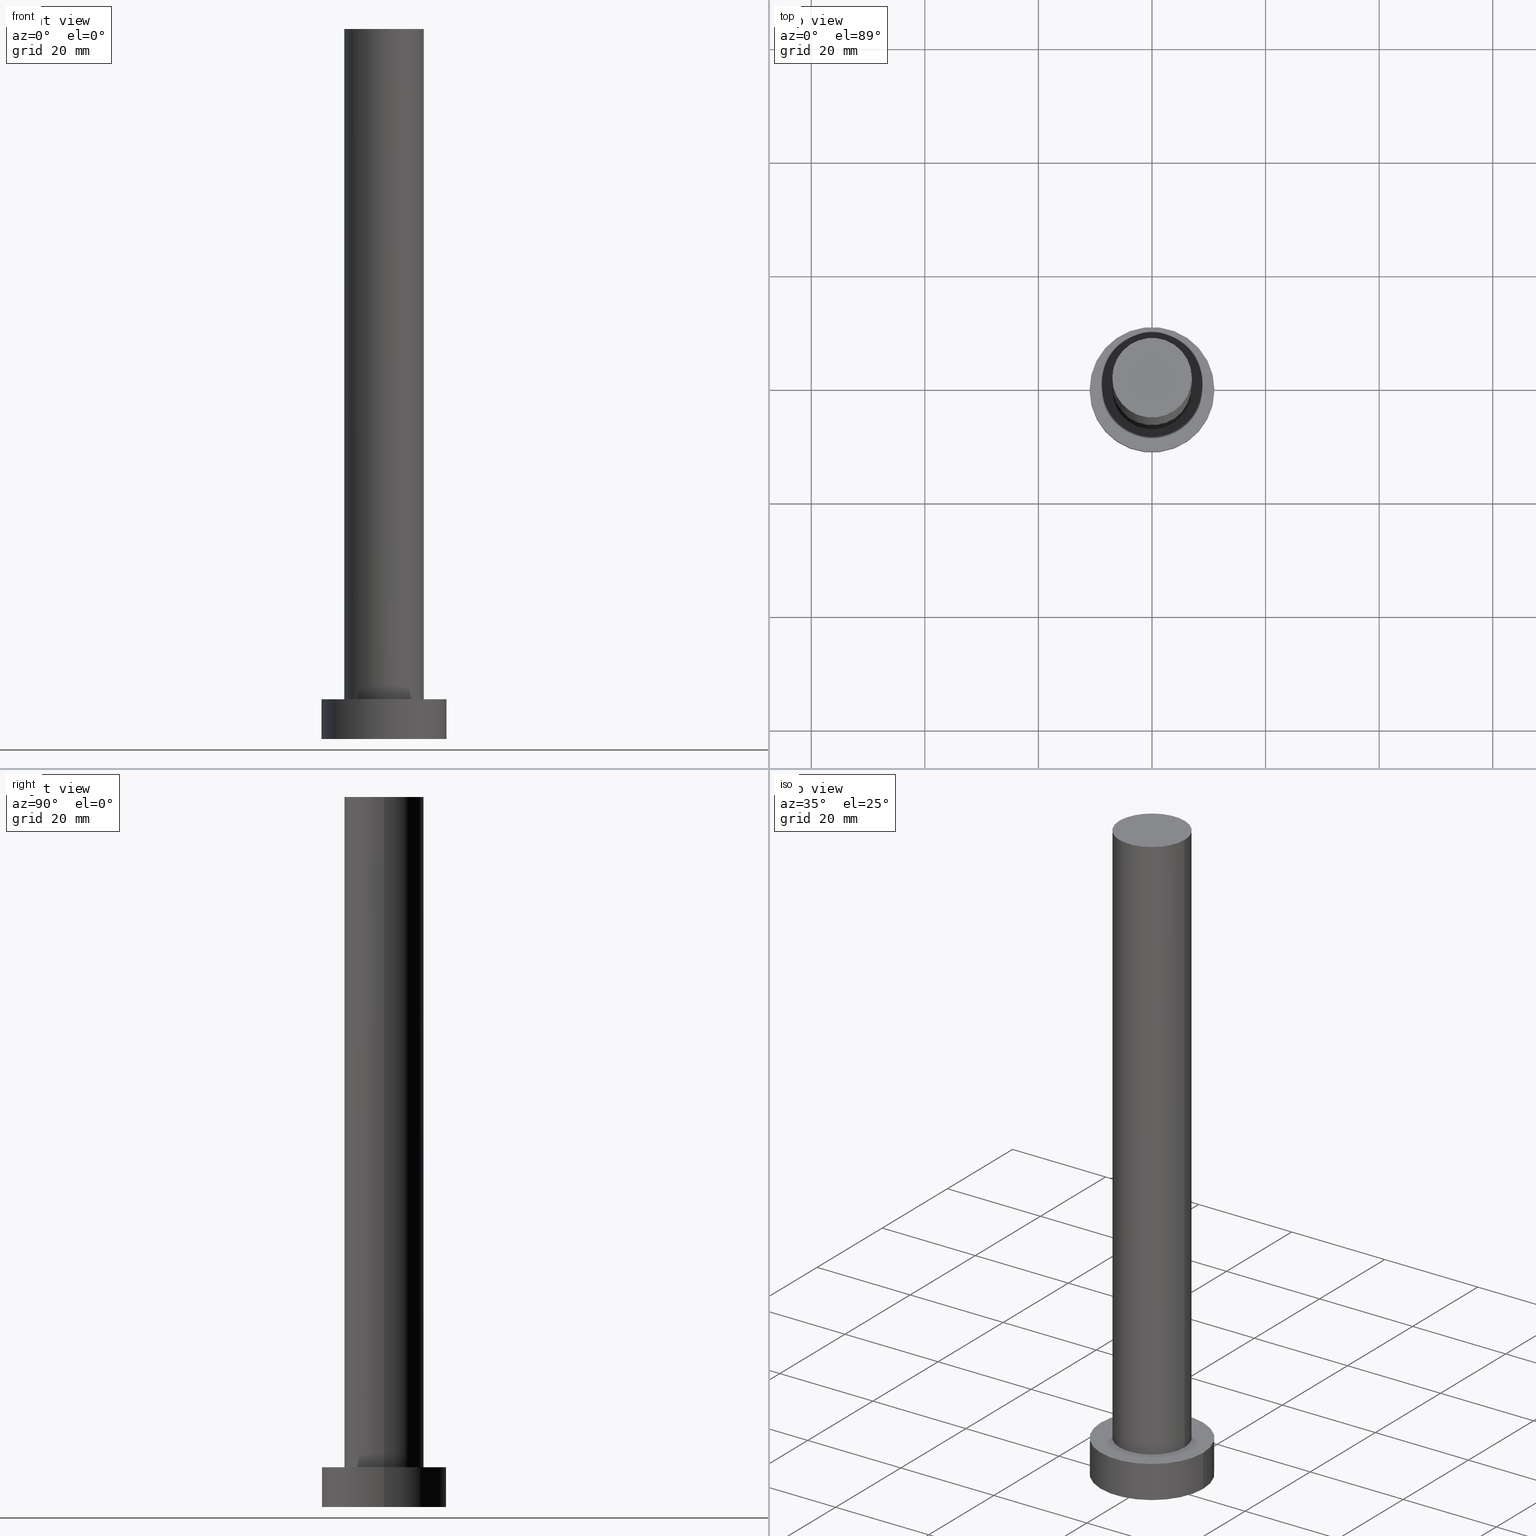
[diagram: canonical four-view strip — front | top / right | iso, engineering-drawing reading convention]
A machine part, canonical four-view strip (front | top / right | iso — engineering-drawing reading convention). The complete STEP part file that produces these views, byte-faithful:
ISO-10303-21;
HEADER;
FILE_DESCRIPTION (( 'STEP AP203' ),
    '1' );
FILE_NAME ('eaa5.STEP',
    '2023-02-12T10:48:17',
    ( '' ),
    ( '' ),
    'SwSTEP 2.0',
    'SolidWorks 2019',
    '' );
FILE_SCHEMA (( 'CONFIG_CONTROL_DESIGN' ));
ENDSEC;

DATA;
#1 = APPLICATION_CONTEXT ( 'configuration controlled 3d designs of mechanical parts and assemblies' ) ;
#2 = AXIS2_PLACEMENT_3D ( 'NONE', #162, #216, #44 ) ;
#3 = DIRECTION ( 'NONE',  ( 0.000000000000000000, 0.000000000000000000, 1.000000000000000000 ) ) ;
#4 = CARTESIAN_POINT ( 'NONE',  ( 0.000000000000000000, 0.000000000000000000, 0.000000000000000000 ) ) ;
#5 = ORIENTED_EDGE ( 'NONE', *, *, #55, .F. ) ;
#6 = ORIENTED_EDGE ( 'NONE', *, *, #147, .F. ) ;
#7 = APPROVAL_ROLE ( '' ) ;
#8 = PRODUCT_DEFINITION ( 'NEZN�M�', '', #110, #139 ) ;
#9 = COORDINATED_UNIVERSAL_TIME_OFFSET ( 1, 0, .AHEAD. ) ;
#10 = APPROVAL_DATE_TIME ( #49, #155 ) ;
#11 = DIRECTION ( 'NONE',  ( 1.000000000000000000, 0.000000000000000000, 0.000000000000000000 ) ) ;
#12 = AXIS2_PLACEMENT_3D ( 'NONE', #22, #45, #118 ) ;
#13 = DIRECTION ( 'NONE',  ( 0.000000000000000000, 0.000000000000000000, 1.000000000000000000 ) ) ;
#14 = CC_DESIGN_PERSON_AND_ORGANIZATION_ASSIGNMENT ( #206, #184, ( #8 ) ) ;
#15 = CALENDAR_DATE ( 2023, 12, 2 ) ;
#16 = EDGE_LOOP ( 'NONE', ( #128, #6, #39, #183 ) ) ;
#17 = CARTESIAN_POINT ( 'NONE',  ( 0.000000000000000000, 0.000000000000000000, 7.000000000000000000 ) ) ;
#18 = DATE_AND_TIME ( #38, #46 ) ;
#19 = DIRECTION ( 'NONE',  ( -0.000000000000000000, -0.000000000000000000, -1.000000000000000000 ) ) ;
#20 = CC_DESIGN_PERSON_AND_ORGANIZATION_ASSIGNMENT ( #202, #71, ( #26 ) ) ;
#21 = LINE ( 'NONE', #160, #250 ) ;
#22 = CARTESIAN_POINT ( 'NONE',  ( 0.000000000000000000, 0.000000000000000000, 7.000000000000000000 ) ) ;
#23 = CARTESIAN_POINT ( 'NONE',  ( 0.000000000000000000, 0.000000000000000000, 125.0000000000000000 ) ) ;
#24 = CC_DESIGN_SECURITY_CLASSIFICATION ( #100, ( #110 ) ) ;
#25 = DIRECTION ( 'NONE',  ( -1.000000000000000000, 0.000000000000000000, 0.000000000000000000 ) ) ;
#26 = PRODUCT ( 'eaa5', 'eaa5', '', ( #90 ) ) ;
#27 = AXIS2_PLACEMENT_3D ( 'NONE', #40, #73, #112 ) ;
#28 = EDGE_CURVE ( 'NONE', #157, #149, #156, .T. ) ;
#29 = EDGE_LOOP ( 'NONE', ( #229, #126, #104, #192 ) ) ;
#30 = APPROVAL_PERSON_ORGANIZATION ( #227, #124, #142 ) ;
#31 = COORDINATED_UNIVERSAL_TIME_OFFSET ( 1, 0, .AHEAD. ) ;
#32 = AXIS2_PLACEMENT_3D ( 'NONE', #23, #252, #178 ) ;
#33 = EDGE_CURVE ( 'NONE', #149, #205, #108, .T. ) ;
#34 = APPROVAL_STATUS ( 'not_yet_approved' ) ;
#35 = DIRECTION ( 'NONE',  ( 0.000000000000000000, 0.000000000000000000, 1.000000000000000000 ) ) ;
#36 = CC_DESIGN_APPROVAL ( #155, ( #8 ) ) ;
#37 = FACE_OUTER_BOUND ( 'NONE', #85, .T. ) ;
#38 = CALENDAR_DATE ( 2023, 12, 2 ) ;
#39 = ORIENTED_EDGE ( 'NONE', *, *, #141, .T. ) ;
#40 = CARTESIAN_POINT ( 'NONE',  ( 0.000000000000000000, 0.000000000000000000, 125.0000000000000000 ) ) ;
#41 = ORIENTED_EDGE ( 'NONE', *, *, #147, .T. ) ;
#42 = DIRECTION ( 'NONE',  ( -0.000000000000000000, -0.000000000000000000, -1.000000000000000000 ) ) ;
#43 = DIRECTION ( 'NONE',  ( 0.000000000000000000, 0.000000000000000000, 1.000000000000000000 ) ) ;
#44 = DIRECTION ( 'NONE',  ( -1.000000000000000000, 0.000000000000000000, 0.000000000000000000 ) ) ;
#45 = DIRECTION ( 'NONE',  ( 0.000000000000000000, 0.000000000000000000, 1.000000000000000000 ) ) ;
#46 = LOCAL_TIME ( 11, 48, 17.00000000000000000, #111 ) ;
#47 = ADVANCED_FACE ( 'NONE', ( #37 ), #228, .T. ) ;
#48 = ORIENTED_EDGE ( 'NONE', *, *, #199, .T. ) ;
#49 = DATE_AND_TIME ( #223, #54 ) ;
#50 = CIRCLE ( 'NONE', #171, 11.00000000000000000 ) ;
#51 = PERSON_AND_ORGANIZATION ( #154, #158 ) ;
#52 = CLOSED_SHELL ( 'NONE', ( #190, #195, #102, #170, #64, #152, #47 ) ) ;
#53 = DIRECTION ( 'NONE',  ( 1.000000000000000000, 0.000000000000000000, 0.000000000000000000 ) ) ;
#54 = LOCAL_TIME ( 11, 48, 17.00000000000000000, #31 ) ;
#55 = EDGE_CURVE ( 'NONE', #173, #205, #233, .T. ) ;
#56 = CARTESIAN_POINT ( 'NONE',  ( 0.000000000000000000, 0.000000000000000000, 7.000000000000000000 ) ) ;
#57 = CARTESIAN_POINT ( 'NONE',  ( 11.00000000000000000, 1.347111479062088405E-15, 0.000000000000000000 ) ) ;
#58 = CARTESIAN_POINT ( 'NONE',  ( 7.000000000000000000, 8.572527594031473190E-16, 7.000000000000000000 ) ) ;
#59 = CARTESIAN_POINT ( 'NONE',  ( -7.000000000000000000, 0.000000000000000000, 125.0000000000000000 ) ) ;
#60 = EDGE_CURVE ( 'NONE', #123, #133, #225, .T. ) ;
#61 = DATE_TIME_ROLE ( 'classification_date' ) ;
#62 = LINE ( 'NONE', #196, #180 ) ;
#63 = CYLINDRICAL_SURFACE ( 'NONE', #145, 7.000000000000000000 ) ;
#64 = ADVANCED_FACE ( 'NONE', ( #96 ), #175, .F. ) ;
#65 = AXIS2_PLACEMENT_3D ( 'NONE', #188, #13, #165 ) ;
#66 = ORIENTED_EDGE ( 'NONE', *, *, #28, .F. ) ;
#67 = PERSON_AND_ORGANIZATION ( #154, #158 ) ;
#68 = APPLICATION_CONTEXT ( 'configuration controlled 3d designs of mechanical parts and assemblies' ) ;
#69 = ORIENTED_EDGE ( 'NONE', *, *, #181, .F. ) ;
#70 = CALENDAR_DATE ( 2023, 12, 2 ) ;
#71 = PERSON_AND_ORGANIZATION_ROLE ( 'design_owner' ) ;
#72 = EDGE_CURVE ( 'NONE', #133, #153, #222, .T. ) ;
#73 = DIRECTION ( 'NONE',  ( 0.000000000000000000, 0.000000000000000000, 1.000000000000000000 ) ) ;
#74 = ORIENTED_EDGE ( 'NONE', *, *, #78, .T. ) ;
#75 = EDGE_LOOP ( 'NONE', ( #130, #88, #201, #212 ) ) ;
#76 = DATE_AND_TIME ( #15, #129 ) ;
#77 = UNCERTAINTY_MEASURE_WITH_UNIT (LENGTH_MEASURE( 1.000000000000000082E-05 ), #208, 'distance_accuracy_value', 'NONE');
#78 = EDGE_CURVE ( 'NONE', #157, #173, #21, .T. ) ;
#79 = LOCAL_TIME ( 11, 48, 17.00000000000000000, #9 ) ;
#80 = DIRECTION ( 'NONE',  ( 1.000000000000000000, 0.000000000000000000, 0.000000000000000000 ) ) ;
#81 = FACE_OUTER_BOUND ( 'NONE', #16, .T. ) ;
#82 = ORIENTED_EDGE ( 'NONE', *, *, #169, .T. ) ;
#83 = CC_DESIGN_DATE_AND_TIME_ASSIGNMENT ( #76, #61, ( #100 ) ) ;
#84 = AXIS2_PLACEMENT_3D ( 'NONE', #56, #132, #186 ) ;
#85 = EDGE_LOOP ( 'NONE', ( #151, #82 ) ) ;
#86 = APPROVAL_ROLE ( '' ) ;
#87 = CIRCLE ( 'NONE', #174, 11.00000000000000000 ) ;
#88 = ORIENTED_EDGE ( 'NONE', *, *, #60, .T. ) ;
#89 = DATE_AND_TIME ( #70, #79 ) ;
#90 = MECHANICAL_CONTEXT ( 'NONE', #68, 'mechanical' ) ;
#91 = AXIS2_PLACEMENT_3D ( 'NONE', #99, #163, #235 ) ;
#92 = ADVANCED_BREP_SHAPE_REPRESENTATION ( 'eaa5', ( #131, #189 ), #122 ) ;
#93 = APPROVAL_DATE_TIME ( #18, #124 ) ;
#94 =( NAMED_UNIT ( * ) PLANE_ANGLE_UNIT ( ) SI_UNIT ( $, .RADIAN. ) );
#95 = VERTEX_POINT ( 'NONE', #143 ) ;
#96 = FACE_OUTER_BOUND ( 'NONE', #243, .T. ) ;
#97 = ORIENTED_EDGE ( 'NONE', *, *, #55, .T. ) ;
#98 = CYLINDRICAL_SURFACE ( 'NONE', #2, 11.00000000000000000 ) ;
#99 = CARTESIAN_POINT ( 'NONE',  ( 0.000000000000000000, 0.000000000000000000, 7.000000000000000000 ) ) ;
#100 = SECURITY_CLASSIFICATION ( '', '', #135 ) ;
#101 = DIRECTION ( 'NONE',  ( 1.000000000000000000, 0.000000000000000000, 0.000000000000000000 ) ) ;
#102 = ADVANCED_FACE ( 'NONE', ( #81 ), #98, .T. ) ;
#103 = FACE_OUTER_BOUND ( 'NONE', #29, .T. ) ;
#104 = ORIENTED_EDGE ( 'NONE', *, *, #181, .T. ) ;
#105 = CC_DESIGN_PERSON_AND_ORGANIZATION_ASSIGNMENT ( #177, #251, ( #100 ) ) ;
#106 = APPLICATION_PROTOCOL_DEFINITION ( 'international standard', 'config_control_design', 1994, #1 ) ;
#107 = DATE_TIME_ROLE ( 'creation_date' ) ;
#108 = LINE ( 'NONE', #211, #134 ) ;
#109 = DIRECTION ( 'NONE',  ( -0.000000000000000000, -0.000000000000000000, -1.000000000000000000 ) ) ;
#110 = PRODUCT_DEFINITION_FORMATION_WITH_SPECIFIED_SOURCE ( 'LIBOVOLN�', '', #26, .NOT_KNOWN. ) ;
#111 = COORDINATED_UNIVERSAL_TIME_OFFSET ( 1, 0, .AHEAD. ) ;
#112 = DIRECTION ( 'NONE',  ( 1.000000000000000000, 0.000000000000000000, -0.000000000000000000 ) ) ;
#113 = VECTOR ( 'NONE', #19, 1000.000000000000000 ) ;
#114 = EDGE_LOOP ( 'NONE', ( #5, #69 ) ) ;
#115 = EDGE_LOOP ( 'NONE', ( #41, #48 ) ) ;
#116 = CARTESIAN_POINT ( 'NONE',  ( 7.000000000000000000, 8.572527594031473190E-16, 125.0000000000000000 ) ) ;
#117 = DIRECTION ( 'NONE',  ( 0.000000000000000000, 0.000000000000000000, 1.000000000000000000 ) ) ;
#118 = DIRECTION ( 'NONE',  ( 1.000000000000000000, 0.000000000000000000, -0.000000000000000000 ) ) ;
#119 = PRODUCT_RELATED_PRODUCT_CATEGORY ( 'detail', '', ( #26 ) ) ;
#120 = CARTESIAN_POINT ( 'NONE',  ( 0.000000000000000000, 0.000000000000000000, 125.0000000000000000 ) ) ;
#121 = AXIS2_PLACEMENT_3D ( 'NONE', #136, #43, #101 ) ;
#122 =( GEOMETRIC_REPRESENTATION_CONTEXT ( 3 ) GLOBAL_UNCERTAINTY_ASSIGNED_CONTEXT ( ( #77 ) ) GLOBAL_UNIT_ASSIGNED_CONTEXT ( ( #208, #94, #220 ) ) REPRESENTATION_CONTEXT ( 'NONE', 'WORKASPACE' ) );
#123 = VERTEX_POINT ( 'NONE', #146 ) ;
#124 = APPROVAL ( #217, 'NEUR�EN�' ) ;
#125 = DIRECTION ( 'NONE',  ( 1.000000000000000000, 0.000000000000000000, 0.000000000000000000 ) ) ;
#126 = ORIENTED_EDGE ( 'NONE', *, *, #33, .T. ) ;
#127 = CALENDAR_DATE ( 2023, 12, 2 ) ;
#128 = ORIENTED_EDGE ( 'NONE', *, *, #60, .F. ) ;
#129 = LOCAL_TIME ( 11, 48, 17.00000000000000000, #161 ) ;
#130 = ORIENTED_EDGE ( 'NONE', *, *, #199, .F. ) ;
#131 = MANIFOLD_SOLID_BREP ( 'P�idat vysunut�m3', #52 ) ;
#132 = DIRECTION ( 'NONE',  ( 0.000000000000000000, 0.000000000000000000, 1.000000000000000000 ) ) ;
#133 = VERTEX_POINT ( 'NONE', #57 ) ;
#134 = VECTOR ( 'NONE', #109, 1000.000000000000000 ) ;
#135 = SECURITY_CLASSIFICATION_LEVEL ( 'unclassified' ) ;
#136 = CARTESIAN_POINT ( 'NONE',  ( 0.000000000000000000, 0.000000000000000000, 7.000000000000000000 ) ) ;
#137 = DIRECTION ( 'NONE',  ( 0.000000000000000000, 0.000000000000000000, 1.000000000000000000 ) ) ;
#138 = AXIS2_PLACEMENT_3D ( 'NONE', #17, #42, #210 ) ;
#139 = DESIGN_CONTEXT ( 'detailed design', #1, 'design' ) ;
#140 = CARTESIAN_POINT ( 'NONE',  ( 0.000000000000000000, 0.000000000000000000, 125.0000000000000000 ) ) ;
#141 = EDGE_CURVE ( 'NONE', #95, #153, #62, .T. ) ;
#142 = APPROVAL_ROLE ( '' ) ;
#143 = CARTESIAN_POINT ( 'NONE',  ( -11.00000000000000000, 0.000000000000000000, 7.000000000000000000 ) ) ;
#144 = CARTESIAN_POINT ( 'NONE',  ( -11.00000000000000000, 0.000000000000000000, 0.000000000000000000 ) ) ;
#145 = AXIS2_PLACEMENT_3D ( 'NONE', #120, #198, #25 ) ;
#146 = CARTESIAN_POINT ( 'NONE',  ( 11.00000000000000000, 1.347111479062088405E-15, 7.000000000000000000 ) ) ;
#147 = EDGE_CURVE ( 'NONE', #95, #123, #230, .T. ) ;
#148 = CIRCLE ( 'NONE', #166, 7.000000000000000000 ) ;
#149 = VERTEX_POINT ( 'NONE', #116 ) ;
#150 = CC_DESIGN_APPROVAL ( #232, ( #110 ) ) ;
#151 = ORIENTED_EDGE ( 'NONE', *, *, #28, .T. ) ;
#152 = ADVANCED_FACE ( 'NONE', ( #234 ), #219, .T. ) ;
#153 = VERTEX_POINT ( 'NONE', #144 ) ;
#154 = PERSON ( 'NEUR�EN�', 'NEUR�EN�', 'NEUR�EN�', ('NEUR�EN�'), ('NEUR�EN�'), ('NEUR�EN�') ) ;
#155 = APPROVAL ( #203, 'NEUR�EN�' ) ;
#156 = CIRCLE ( 'NONE', #241, 7.000000000000000000 ) ;
#157 = VERTEX_POINT ( 'NONE', #59 ) ;
#158 = ORGANIZATION ( 'NEUR�EN�', 'NEUR�EN�', '' ) ;
#159 = EDGE_LOOP ( 'NONE', ( #231, #66, #74, #97 ) ) ;
#160 = CARTESIAN_POINT ( 'NONE',  ( -7.000000000000000000, 0.000000000000000000, 125.0000000000000000 ) ) ;
#161 = COORDINATED_UNIVERSAL_TIME_OFFSET ( 1, 0, .AHEAD. ) ;
#162 = CARTESIAN_POINT ( 'NONE',  ( 0.000000000000000000, 0.000000000000000000, 7.000000000000000000 ) ) ;
#163 = DIRECTION ( 'NONE',  ( 0.000000000000000000, 0.000000000000000000, 1.000000000000000000 ) ) ;
#164 = AXIS2_PLACEMENT_3D ( 'NONE', #172, #248, #244 ) ;
#165 = DIRECTION ( 'NONE',  ( 1.000000000000000000, 0.000000000000000000, 0.000000000000000000 ) ) ;
#166 = AXIS2_PLACEMENT_3D ( 'NONE', #140, #117, #80 ) ;
#167 = DIRECTION ( 'NONE',  ( 1.000000000000000000, 0.000000000000000000, 0.000000000000000000 ) ) ;
#168 = ORIENTED_EDGE ( 'NONE', *, *, #237, .F. ) ;
#169 = EDGE_CURVE ( 'NONE', #149, #157, #148, .T. ) ;
#170 = ADVANCED_FACE ( 'NONE', ( #218, #194 ), #179, .T. ) ;
#171 = AXIS2_PLACEMENT_3D ( 'NONE', #193, #137, #11 ) ;
#172 = CARTESIAN_POINT ( 'NONE',  ( 0.000000000000000000, 0.000000000000000000, 0.000000000000000000 ) ) ;
#173 = VERTEX_POINT ( 'NONE', #255 ) ;
#174 = AXIS2_PLACEMENT_3D ( 'NONE', #224, #245, #53 ) ;
#175 = PLANE ( 'NONE',  #164 ) ;
#176 = DIRECTION ( 'NONE',  ( -0.000000000000000000, -0.000000000000000000, -1.000000000000000000 ) ) ;
#177 = PERSON_AND_ORGANIZATION ( #154, #158 ) ;
#178 = DIRECTION ( 'NONE',  ( -1.000000000000000000, 0.000000000000000000, 0.000000000000000000 ) ) ;
#179 = PLANE ( 'NONE',  #12 ) ;
#180 = VECTOR ( 'NONE', #176, 1000.000000000000000 ) ;
#181 = EDGE_CURVE ( 'NONE', #205, #173, #200, .T. ) ;
#182 = APPLICATION_PROTOCOL_DEFINITION ( 'international standard', 'config_control_design', 1994, #68 ) ;
#183 = ORIENTED_EDGE ( 'NONE', *, *, #237, .T. ) ;
#184 = PERSON_AND_ORGANIZATION_ROLE ( 'creator' ) ;
#185 = PERSON_AND_ORGANIZATION ( #154, #158 ) ;
#186 = DIRECTION ( 'NONE',  ( 1.000000000000000000, 0.000000000000000000, 0.000000000000000000 ) ) ;
#187 = COORDINATED_UNIVERSAL_TIME_OFFSET ( 1, 0, .AHEAD. ) ;
#188 = CARTESIAN_POINT ( 'NONE',  ( 0.000000000000000000, 0.000000000000000000, 0.000000000000000000 ) ) ;
#189 = AXIS2_PLACEMENT_3D ( 'NONE', #4, #3, #167 ) ;
#190 = ADVANCED_FACE ( 'NONE', ( #103 ), #63, .T. ) ;
#191 = FACE_OUTER_BOUND ( 'NONE', #75, .T. ) ;
#192 = ORIENTED_EDGE ( 'NONE', *, *, #78, .F. ) ;
#193 = CARTESIAN_POINT ( 'NONE',  ( 0.000000000000000000, 0.000000000000000000, 0.000000000000000000 ) ) ;
#194 = FACE_OUTER_BOUND ( 'NONE', #115, .T. ) ;
#195 = ADVANCED_FACE ( 'NONE', ( #191 ), #249, .T. ) ;
#196 = CARTESIAN_POINT ( 'NONE',  ( -11.00000000000000000, 0.000000000000000000, 7.000000000000000000 ) ) ;
#197 = LOCAL_TIME ( 11, 48, 17.00000000000000000, #187 ) ;
#198 = DIRECTION ( 'NONE',  ( -0.000000000000000000, -0.000000000000000000, -1.000000000000000000 ) ) ;
#199 = EDGE_CURVE ( 'NONE', #123, #95, #87, .T. ) ;
#200 = CIRCLE ( 'NONE', #91, 7.000000000000000000 ) ;
#201 = ORIENTED_EDGE ( 'NONE', *, *, #72, .T. ) ;
#202 = PERSON_AND_ORGANIZATION ( #154, #158 ) ;
#203 = APPROVAL_STATUS ( 'not_yet_approved' ) ;
#204 = PERSON_AND_ORGANIZATION ( #154, #158 ) ;
#205 = VERTEX_POINT ( 'NONE', #58 ) ;
#206 = PERSON_AND_ORGANIZATION ( #154, #158 ) ;
#207 = CARTESIAN_POINT ( 'NONE',  ( 0.000000000000000000, 0.000000000000000000, 125.0000000000000000 ) ) ;
#208 =( LENGTH_UNIT ( ) NAMED_UNIT ( * ) SI_UNIT ( .MILLI., .METRE. ) );
#209 = CARTESIAN_POINT ( 'NONE',  ( 11.00000000000000000, 1.347111479062088405E-15, 7.000000000000000000 ) ) ;
#210 = DIRECTION ( 'NONE',  ( -1.000000000000000000, 0.000000000000000000, 0.000000000000000000 ) ) ;
#211 = CARTESIAN_POINT ( 'NONE',  ( 7.000000000000000000, 8.572527594031473190E-16, 125.0000000000000000 ) ) ;
#212 = ORIENTED_EDGE ( 'NONE', *, *, #141, .F. ) ;
#213 = PRODUCT_DEFINITION_SHAPE ( 'NONE', 'NONE',  #8 ) ;
#214 = CC_DESIGN_PERSON_AND_ORGANIZATION_ASSIGNMENT ( #67, #221, ( #110 ) ) ;
#215 = PERSON_AND_ORGANIZATION_ROLE ( 'design_supplier' ) ;
#216 = DIRECTION ( 'NONE',  ( -0.000000000000000000, -0.000000000000000000, -1.000000000000000000 ) ) ;
#217 = APPROVAL_STATUS ( 'not_yet_approved' ) ;
#218 = FACE_BOUND ( 'NONE', #114, .T. ) ;
#219 = CYLINDRICAL_SURFACE ( 'NONE', #32, 7.000000000000000000 ) ;
#220 =( NAMED_UNIT ( * ) SI_UNIT ( $, .STERADIAN. ) SOLID_ANGLE_UNIT ( ) );
#221 = PERSON_AND_ORGANIZATION_ROLE ( 'creator' ) ;
#222 = CIRCLE ( 'NONE', #65, 11.00000000000000000 ) ;
#223 = CALENDAR_DATE ( 2023, 12, 2 ) ;
#224 = CARTESIAN_POINT ( 'NONE',  ( 0.000000000000000000, 0.000000000000000000, 7.000000000000000000 ) ) ;
#225 = LINE ( 'NONE', #209, #113 ) ;
#226 = APPROVAL_PERSON_ORGANIZATION ( #51, #155, #86 ) ;
#227 = PERSON_AND_ORGANIZATION ( #154, #158 ) ;
#228 = PLANE ( 'NONE',  #27 ) ;
#229 = ORIENTED_EDGE ( 'NONE', *, *, #169, .F. ) ;
#230 = CIRCLE ( 'NONE', #121, 11.00000000000000000 ) ;
#231 = ORIENTED_EDGE ( 'NONE', *, *, #33, .F. ) ;
#232 = APPROVAL ( #34, 'NEUR�EN�' ) ;
#233 = CIRCLE ( 'NONE', #84, 7.000000000000000000 ) ;
#234 = FACE_OUTER_BOUND ( 'NONE', #159, .T. ) ;
#235 = DIRECTION ( 'NONE',  ( 1.000000000000000000, 0.000000000000000000, 0.000000000000000000 ) ) ;
#236 = DIRECTION ( 'NONE',  ( -0.000000000000000000, -0.000000000000000000, -1.000000000000000000 ) ) ;
#237 = EDGE_CURVE ( 'NONE', #153, #133, #50, .T. ) ;
#238 = CC_DESIGN_APPROVAL ( #124, ( #100 ) ) ;
#239 = APPROVAL_DATE_TIME ( #242, #232 ) ;
#240 = CC_DESIGN_PERSON_AND_ORGANIZATION_ASSIGNMENT ( #185, #215, ( #110 ) ) ;
#241 = AXIS2_PLACEMENT_3D ( 'NONE', #207, #35, #125 ) ;
#242 = DATE_AND_TIME ( #127, #197 ) ;
#243 = EDGE_LOOP ( 'NONE', ( #168, #246 ) ) ;
#244 = DIRECTION ( 'NONE',  ( 1.000000000000000000, 0.000000000000000000, -0.000000000000000000 ) ) ;
#245 = DIRECTION ( 'NONE',  ( 0.000000000000000000, 0.000000000000000000, 1.000000000000000000 ) ) ;
#246 = ORIENTED_EDGE ( 'NONE', *, *, #72, .F. ) ;
#247 = SHAPE_DEFINITION_REPRESENTATION ( #213, #92 ) ;
#248 = DIRECTION ( 'NONE',  ( 0.000000000000000000, 0.000000000000000000, 1.000000000000000000 ) ) ;
#249 = CYLINDRICAL_SURFACE ( 'NONE', #138, 11.00000000000000000 ) ;
#250 = VECTOR ( 'NONE', #236, 1000.000000000000000 ) ;
#251 = PERSON_AND_ORGANIZATION_ROLE ( 'classification_officer' ) ;
#252 = DIRECTION ( 'NONE',  ( -0.000000000000000000, -0.000000000000000000, -1.000000000000000000 ) ) ;
#253 = APPROVAL_PERSON_ORGANIZATION ( #204, #232, #7 ) ;
#254 = CC_DESIGN_DATE_AND_TIME_ASSIGNMENT ( #89, #107, ( #8 ) ) ;
#255 = CARTESIAN_POINT ( 'NONE',  ( -7.000000000000000000, 0.000000000000000000, 7.000000000000000000 ) ) ;
ENDSEC;
END-ISO-10303-21;
